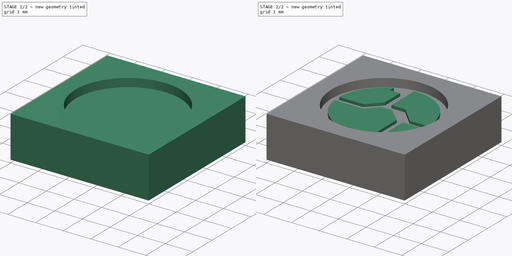
[diagram: build sequence overview — one tinted view per stage of 2, left to right]
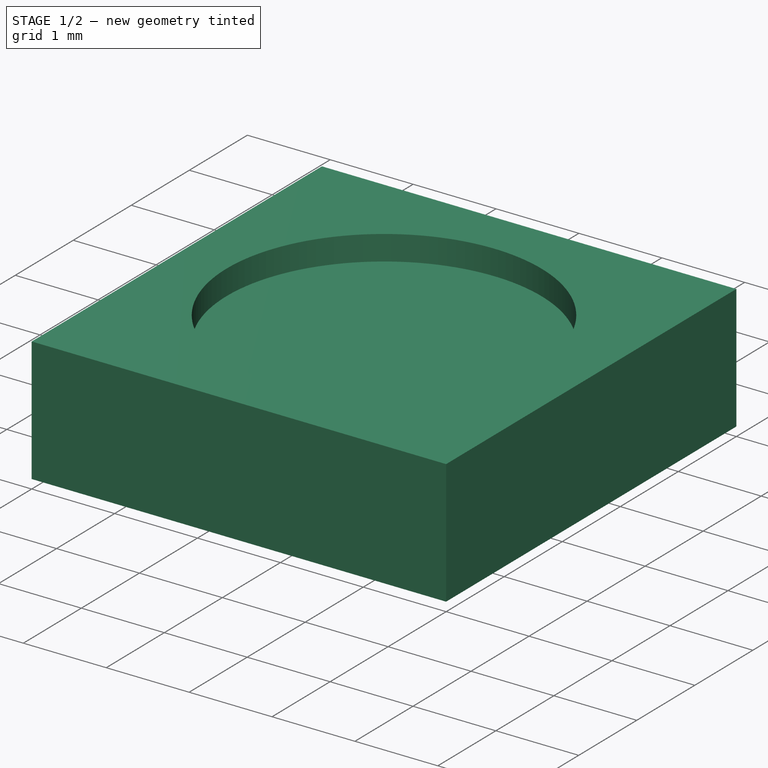
[diagram: stage 1 of 2 — iso view after this stage's code; geometry added in this stage tinted green]
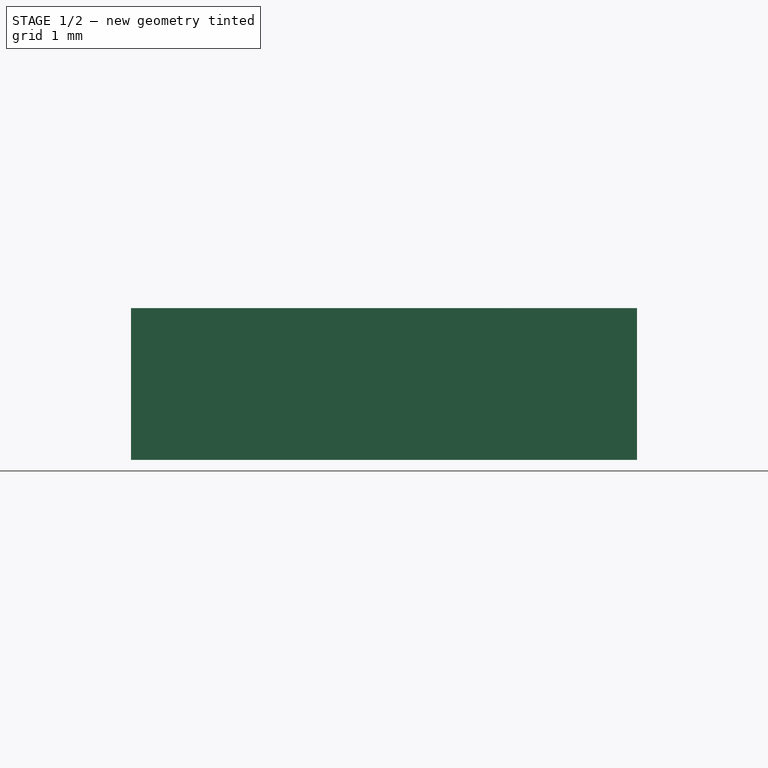
[diagram: stage 1 of 2 — front view after this stage's code; geometry added in this stage tinted green]
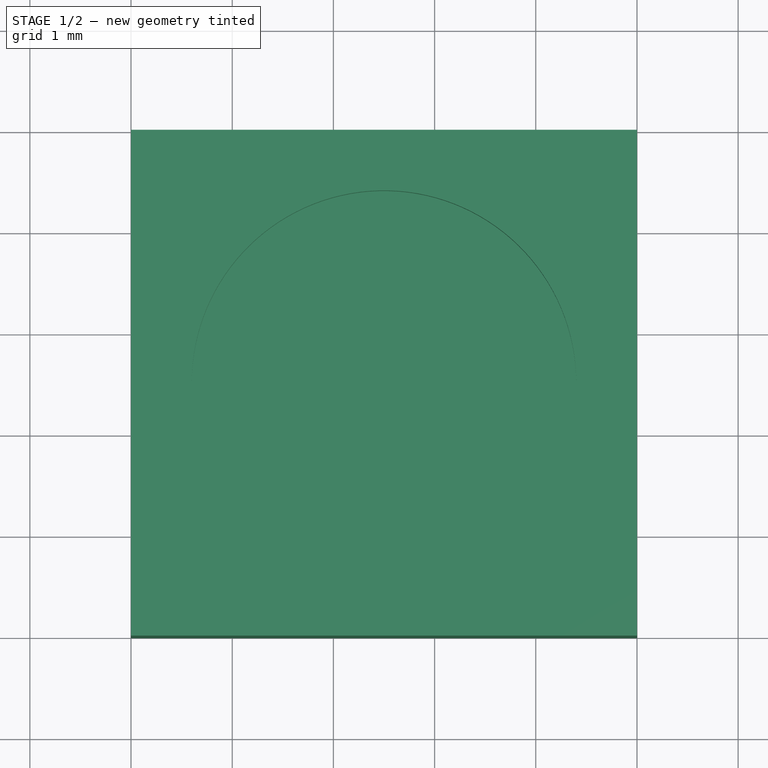
[diagram: stage 1 of 2 — top view after this stage's code; geometry added in this stage tinted green]
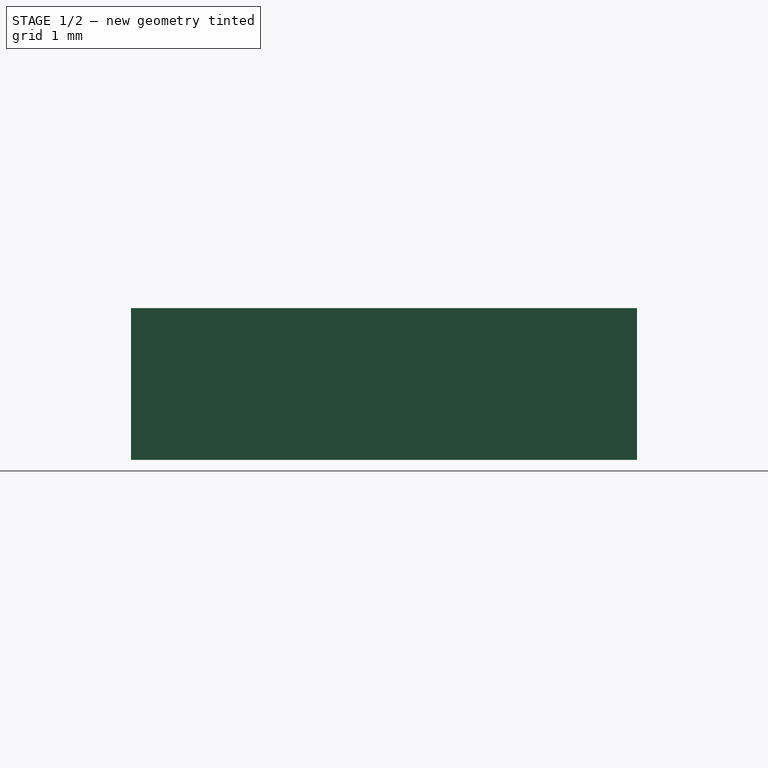
[diagram: stage 1 of 2 — right view after this stage's code; geometry added in this stage tinted green]
FCSTD DOCUMENT  (FreeCAD 0.16R6551 (Git))
Label: NeoPixel_single
License: All rights reserved
LicenseURL: http://en.wikipedia.org/wiki/All_rights_reserved
objects: Sketcher::SketchObject×3, PartDesign::Pad×2, PartDesign::Pocket×1
note: 9 computed .brp shape members not serialized (recipe doc carries the construction recipe); baked Part::Feature solids carry a one-line shape summary decoded from their .brp

FEATURE [Sketcher::SketchObject] Sketch
  sketch-geometry (4):
    g0: LineSegment StartX=0 StartY=0 StartZ=0 EndX=5 EndY=0 EndZ=0
    g1: LineSegment StartX=5 StartY=0 StartZ=0 EndX=5 EndY=5 EndZ=0
    g2: LineSegment StartX=5 StartY=5 StartZ=0 EndX=0 EndY=5 EndZ=0
    g3: LineSegment StartX=0 StartY=5 StartZ=0 EndX=0 EndY=0 EndZ=0
  constraints (11):
    c: Coincident(g0,g1)
    c: Coincident(g1,g2)
    c: Coincident(g2,g3)
    c: Coincident(g3,g0)
    c: Horizontal(g0)
    c: Horizontal(g2)
    c: Vertical(g1)
    c: Vertical(g3)
    c: Coincident(g0,g-1)
    c: DistanceX(g2) = -5
    c: DistanceY(g3) = -5
FEATURE [PartDesign::Pad] Pad
  Length = 1.5
  Length2 = 100
  Sketch = -> Sketch
  Type = 0
FEATURE [Sketcher::SketchObject] Sketch001
  ExternalGeometry = -> [Pad]
  Placement = pos=(0,0,1.5) rot=(0,0,1;0rad)
  Support = -> Pad [Face6]
  sketch-geometry (1):
    g0: Circle CenterX=2.5 CenterY=2.5 CenterZ=0 NormalX=0 NormalY=0 NormalZ=1 Radius=1.9
  constraints (2):
    c: Symmetric(g-3,g-4,g0)
    c: Radius(g0) = 1.9
FEATURE [PartDesign::Pocket] Pocket
  Length = 0.3
  Sketch = -> Sketch001
  Type = 0
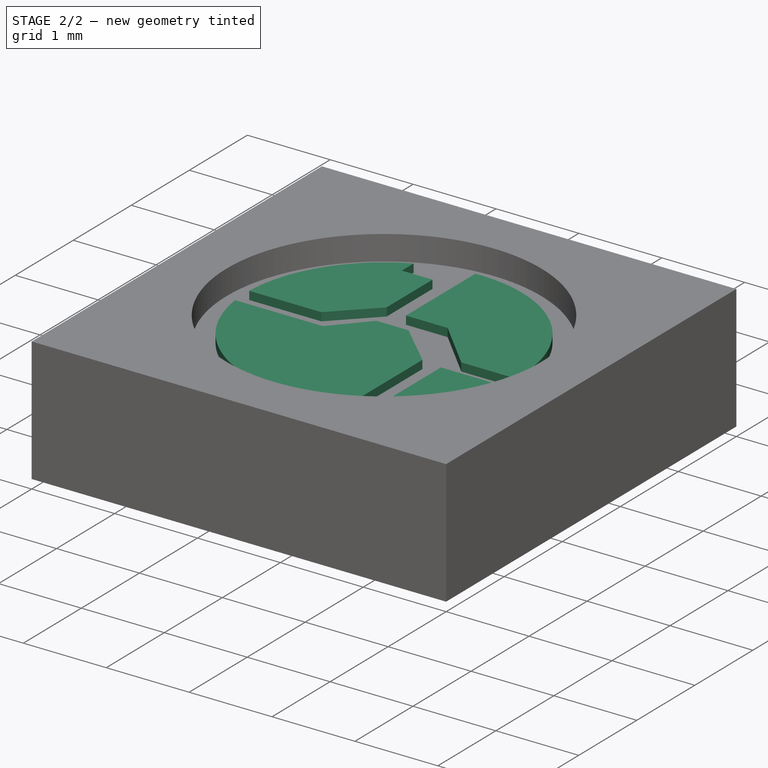
[diagram: stage 2 of 2 — iso view after this stage's code; geometry added in this stage tinted green]
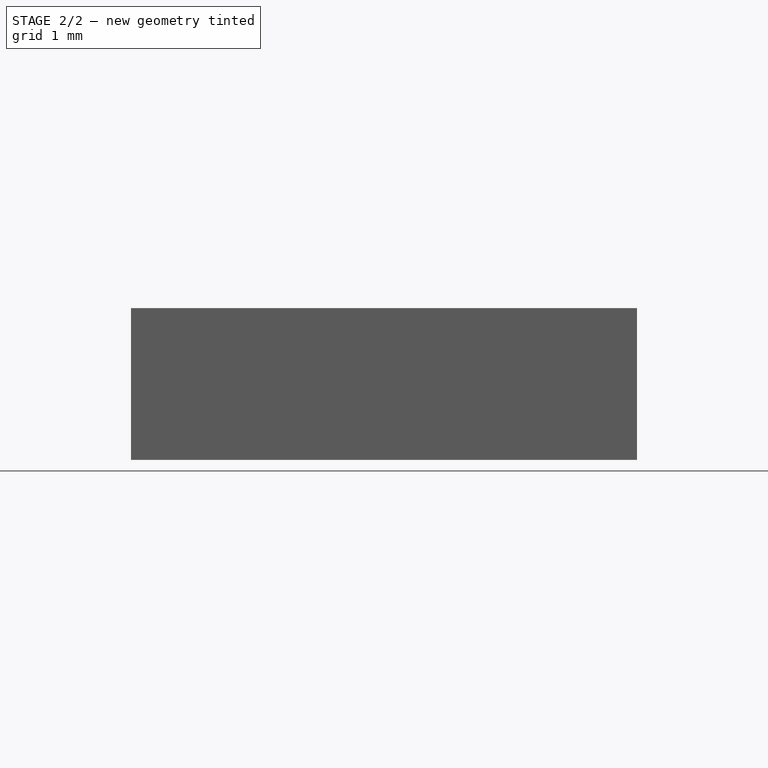
[diagram: stage 2 of 2 — front view after this stage's code; geometry added in this stage tinted green]
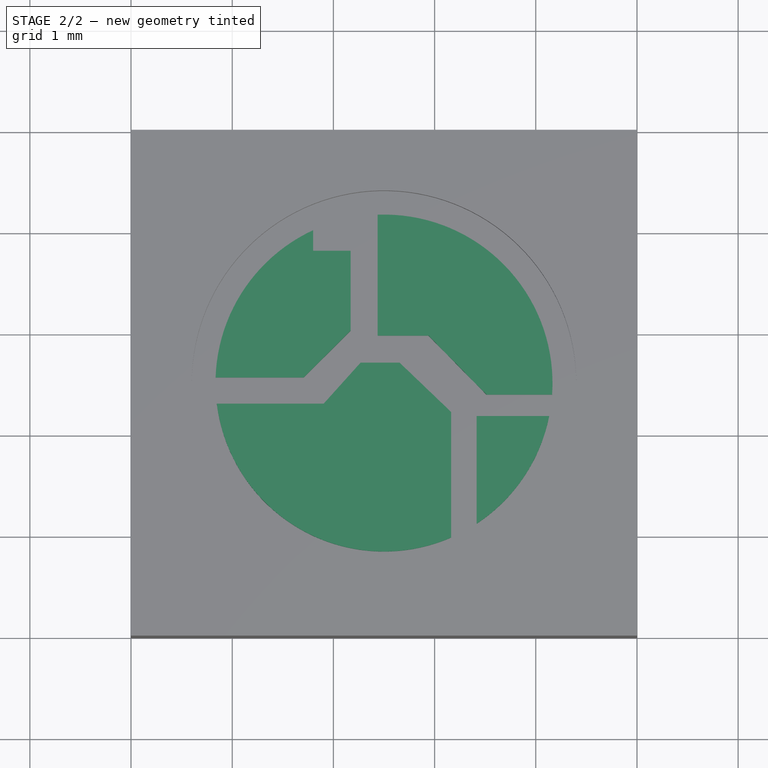
[diagram: stage 2 of 2 — top view after this stage's code; geometry added in this stage tinted green]
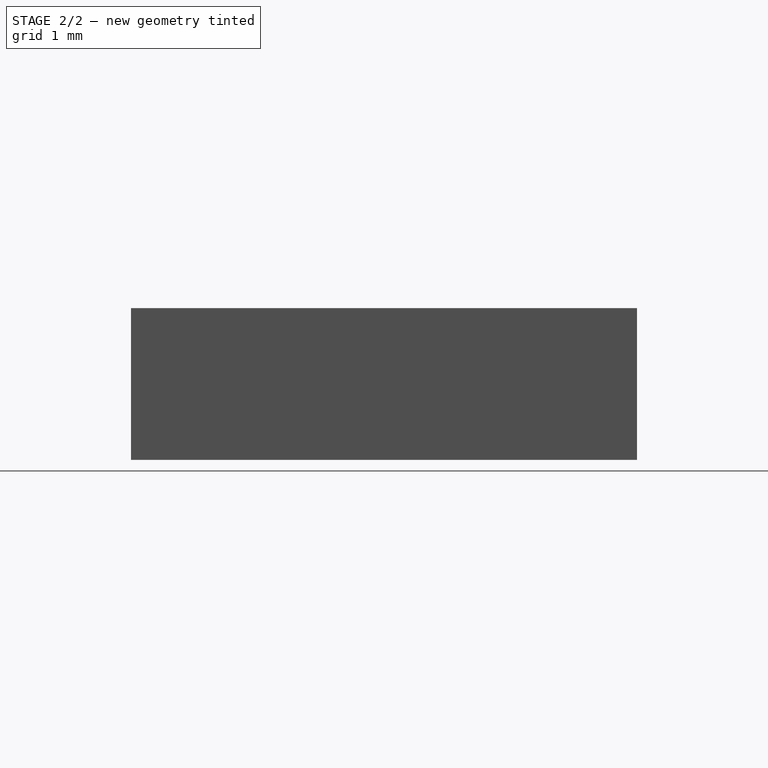
[diagram: stage 2 of 2 — right view after this stage's code; geometry added in this stage tinted green]
FEATURE [Sketcher::SketchObject] Sketch002
  ExternalGeometry = -> [Pocket]
  Placement = pos=(0,0,1.2) rot=(0,0,1;0rad)
  Support = -> Pocket [Face8]
  sketch-geometry (21):
    g0: Circle [constr] CenterX=2.5 CenterY=2.5 CenterZ=0 NormalX=0 NormalY=0 NormalZ=1 Radius=1.66517
    g1: LineSegment StartX=0.835727 StartY=2.55467 StartZ=0 EndX=1.70607 EndY=2.55467 EndZ=0
    g2: LineSegment StartX=1.70607 StartY=2.55467 StartZ=0 EndX=2.17002 EndY=3.01784 EndZ=0
    g3: LineSegment StartX=2.17002 StartY=3.01784 StartZ=0 EndX=2.17002 EndY=3.80753 EndZ=0
    g4: LineSegment StartX=2.17002 StartY=3.80753 StartZ=0 EndX=1.80001 EndY=3.80753 EndZ=0
    g5: LineSegment StartX=1.80001 StartY=3.80753 StartZ=0 EndX=1.80001 EndY=4.01089 EndZ=0
    g6: LineSegment StartX=2.43665 StartY=4.16397 StartZ=0 EndX=2.43665 EndY=2.96848 EndZ=0
    g7: LineSegment StartX=2.43665 StartY=2.96848 StartZ=0 EndX=2.93997 EndY=2.96848 EndZ=0
    g8: LineSegment StartX=2.93997 StartY=2.96848 StartZ=0 EndX=3.51249 EndY=2.38588 EndZ=0
    g9: LineSegment StartX=3.51249 StartY=2.38588 StartZ=0 EndX=4.16126 EndY=2.38588 EndZ=0
    g10: LineSegment StartX=0.847377 StartY=2.29597 StartZ=0 EndX=1.9035 EndY=2.29597 EndZ=0
    g11: LineSegment StartX=1.9035 StartY=2.29597 StartZ=0 EndX=2.26873 EndY=2.70196 EndZ=0
    g12: LineSegment StartX=2.26873 StartY=2.70196 StartZ=0 EndX=2.6537 EndY=2.70196 EndZ=0
    g13: LineSegment StartX=2.6537 StartY=2.70196 StartZ=0 EndX=3.16354 EndY=2.21375 EndZ=0
    g14: LineSegment StartX=3.16354 StartY=2.21375 StartZ=0 EndX=3.16354 EndY=0.972745 EndZ=0
    g15: ArcOfCircle CenterX=2.5 CenterY=2.5 CenterZ=0 NormalX=0 NormalY=0 NormalZ=1 Radius=1.66517 StartAngle=2.00465 EndAngle=3.10875
    g16: ArcOfCircle CenterX=2.5 CenterY=2.5 CenterZ=0 NormalX=0 NormalY=0 NormalZ=1 Radius=1.66517 StartAngle=6.2146 EndAngle=7.89204
    g17: LineSegment StartX=3.41498 StartY=1.10874 StartZ=0 EndX=3.41498 EndY=2.17405 EndZ=0
    g18: LineSegment StartX=3.41498 StartY=2.17405 StartZ=0 EndX=4.13296 EndY=2.17405 EndZ=0
    g19: ArcOfCircle CenterX=2.5 CenterY=2.5 CenterZ=0 NormalX=0 NormalY=0 NormalZ=1 Radius=1.66517 StartAngle=5.29413 EndAngle=6.08617
    g20: ArcOfCircle CenterX=2.5 CenterY=2.5 CenterZ=0 NormalX=0 NormalY=0 NormalZ=1 Radius=1.66517 StartAngle=3.26443 EndAngle=5.12225
  constraints (43):
    c: Coincident(g0,g-3)
    c: PointOnObject(g1,g0)
    c: Horizontal(g1)
    c: Coincident(g1,g2)
    c: Coincident(g2,g3)
    c: Vertical(g3)
    c: Coincident(g3,g4)
    c: Horizontal(g4)
    c: Coincident(g4,g5)
    c: PointOnObject(g5,g0)
    c: PointOnObject(g6,g0)
    c: Vertical(g6)
    c: Coincident(g6,g7)
    c: Horizontal(g7)
    c: Coincident(g7,g8)
    c: Coincident(g8,g9)
    c: PointOnObject(g9,g0)
    c: Horizontal(g9)
    c: PointOnObject(g10,g0)
    c: Horizontal(g10)
    c: Coincident(g10,g11)
    c: Coincident(g11,g12)
    c: Horizontal(g12)
    c: Coincident(g12,g13)
    c: Coincident(g13,g14)
    c: PointOnObject(g14,g0)
    c: Vertical(g14)
    c: Vertical(g5)
    c: Coincident(g15,g1)
    c: Coincident(g15,g5)
    c: Coincident(g16,g6)
    c: Coincident(g16,g9)
    c: PointOnObject(g17,g0)
    c: Vertical(g17)
    c: Coincident(g17,g18)
    c: PointOnObject(g18,g0)
    c: Horizontal(g18)
    c: Coincident(g19,g18)
    c: Coincident(g19,g17)
    c: Tangent(g19,g0)
    c: Coincident(g20,g10)
    c: Coincident(g20,g14)
    c: Tangent(g20,g0)
FEATURE [PartDesign::Pad] Pad001
  Length = 0.1
  Length2 = 100
  Sketch = -> Sketch002
  Type = 0
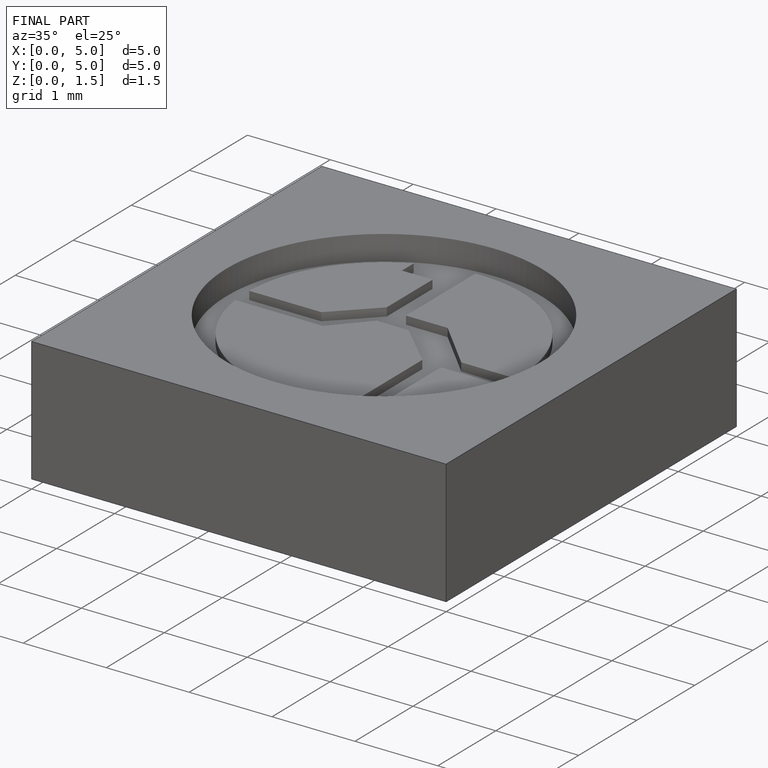
[diagram: finished part — iso view with bounding-box wireframe]
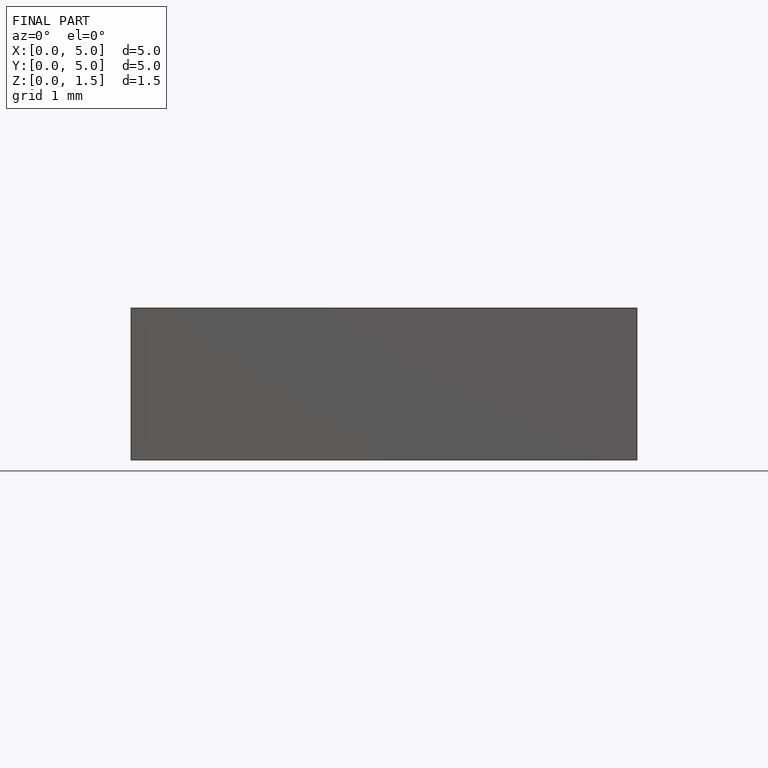
[diagram: finished part — front view with bounding-box wireframe]
